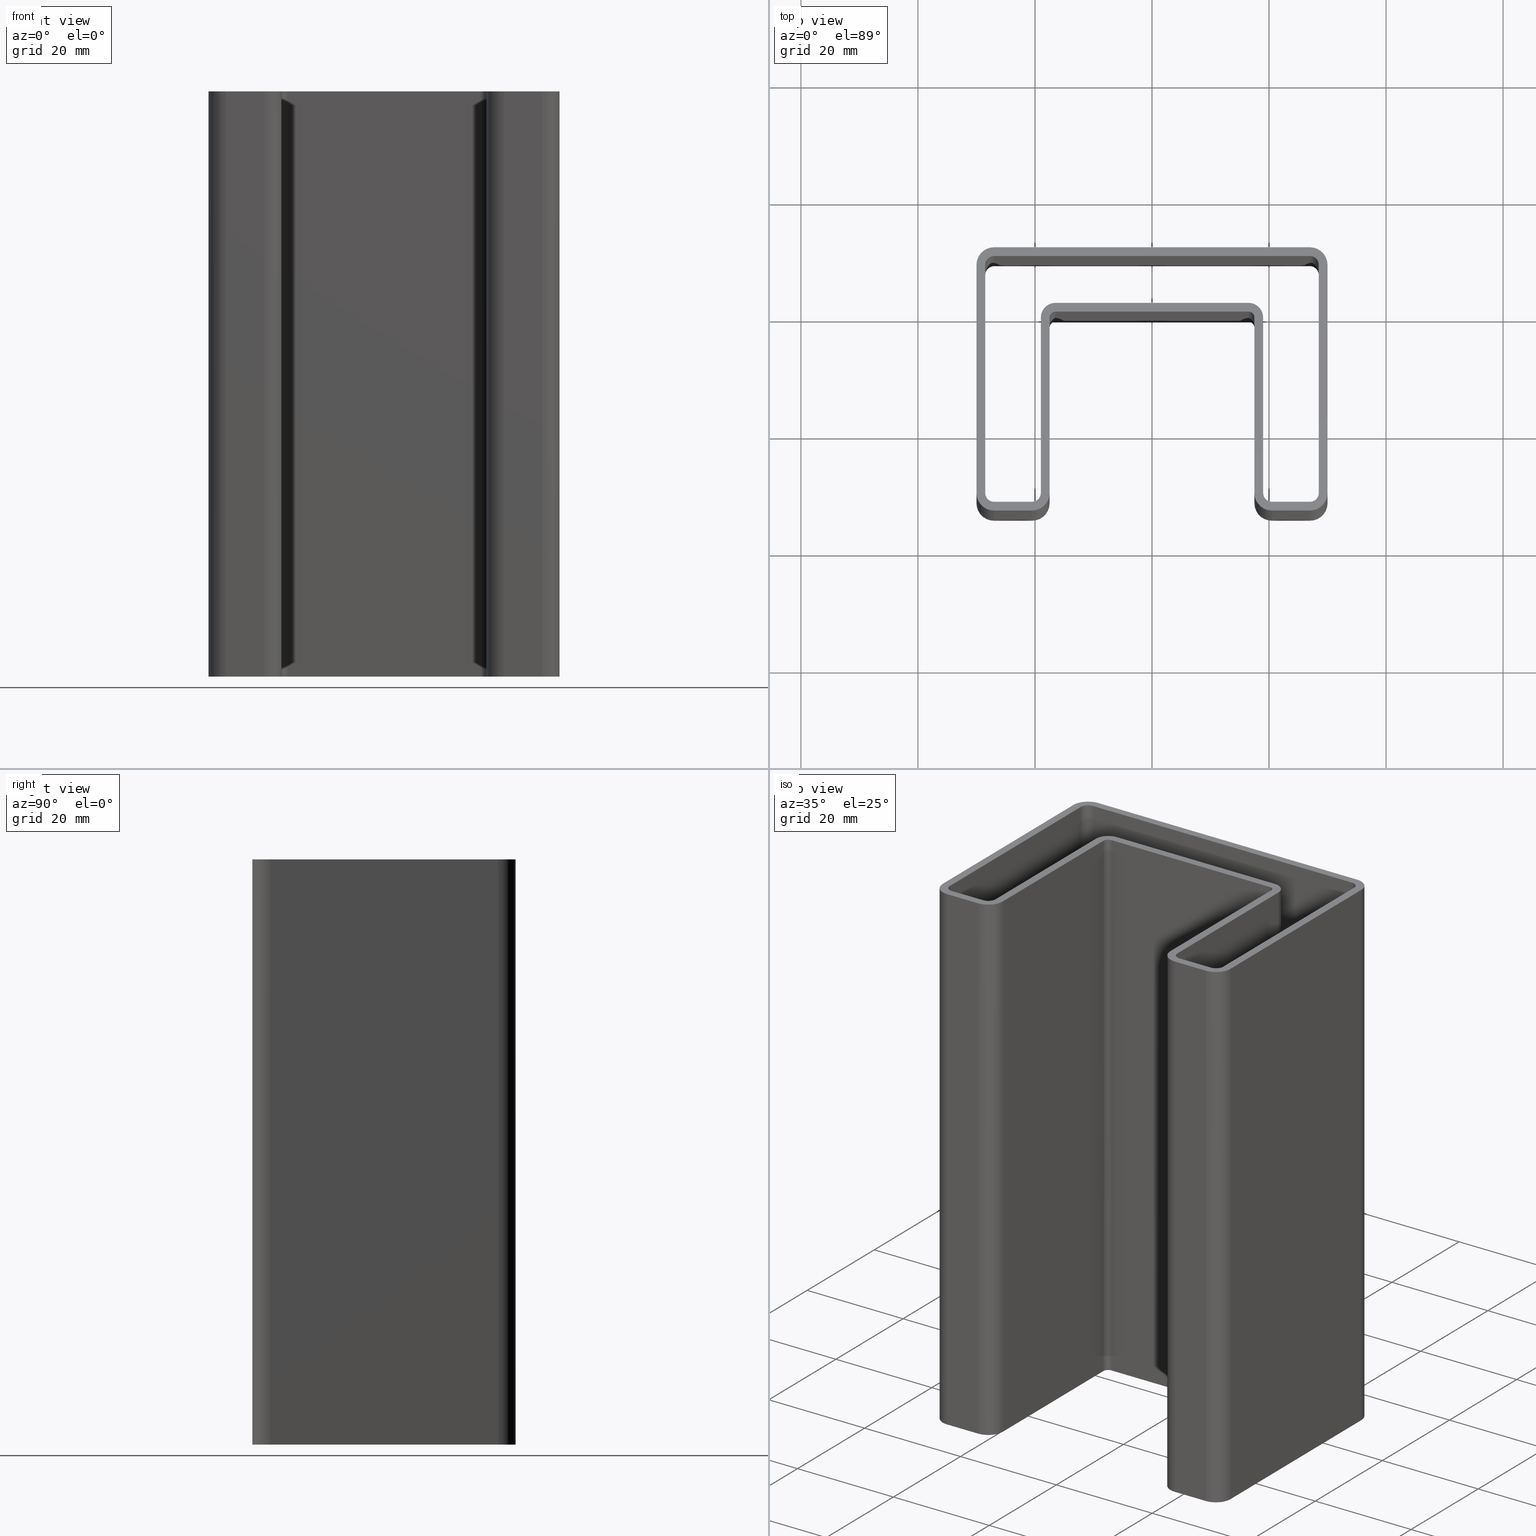
[diagram: canonical four-view strip — front | top / right | iso, engineering-drawing reading convention]
A machine part, canonical four-view strip (front | top / right | iso — engineering-drawing reading convention). The complete STEP part file that produces these views, byte-faithful:
ISO-10303-21;
HEADER;
/* Generated by software containing ST-Developer
 * from STEP Tools, Inc. (www.steptools.com) 
 */
/* OPTION: strings as raw bytes, not using required /X/ escapes */

FILE_DESCRIPTION(
/* description */ ('Unknown'),
/* implementation_level */ '2;1');

FILE_NAME(
/* name */ 'A000019',
/* time_stamp */ '2020-06-22T23:56:29+02:00',
/* author */ ('Unknown'),
/* organization */ ('Unknown'),
/* preprocessor_version */ 'ST-DEVELOPER v16.7',
/* originating_system */ 'DEX',
/* authorisation */ $);

FILE_SCHEMA (('CONFIG_CONTROL_DESIGN'));
ENDSEC;

DATA;
#10=PROPERTY_DEFINITION_REPRESENTATION(#14,#12);
#11=PROPERTY_DEFINITION_REPRESENTATION(#15,#13);
#12=REPRESENTATION('',(#16),#1145);
#13=REPRESENTATION('',(#17),#1145);
#14=PROPERTY_DEFINITION('pmi validation property','',#1150);
#15=PROPERTY_DEFINITION('pmi validation property','',#1150);
#16=VALUE_REPRESENTATION_ITEM('number of annotations',COUNT_MEASURE(0.));
#17=VALUE_REPRESENTATION_ITEM('number of views',COUNT_MEASURE(0.));
#18=SHAPE_REPRESENTATION_RELATIONSHIP('','',#683,#19);
#19=ADVANCED_BREP_SHAPE_REPRESENTATION('',(#681),#1145);
#20=CYLINDRICAL_SURFACE('',#706,1.);
#21=CYLINDRICAL_SURFACE('',#709,3.);
#22=CYLINDRICAL_SURFACE('',#727,3.);
#23=CYLINDRICAL_SURFACE('',#729,3.);
#24=CYLINDRICAL_SURFACE('',#730,3.);
#25=CYLINDRICAL_SURFACE('',#732,3.);
#26=CYLINDRICAL_SURFACE('',#734,3.);
#27=CYLINDRICAL_SURFACE('',#735,2.5);
#28=CYLINDRICAL_SURFACE('',#737,1.);
#29=CYLINDRICAL_SURFACE('',#739,1.5);
#30=CYLINDRICAL_SURFACE('',#741,1.5);
#31=CYLINDRICAL_SURFACE('',#743,1.5);
#32=CYLINDRICAL_SURFACE('',#745,1.5);
#33=CYLINDRICAL_SURFACE('',#747,1.5);
#34=CYLINDRICAL_SURFACE('',#749,1.5);
#35=CYLINDRICAL_SURFACE('',#750,2.5);
#36=CIRCLE('',#687,2.5);
#37=CIRCLE('',#688,2.5);
#38=CIRCLE('',#689,1.5);
#39=CIRCLE('',#690,1.5);
#40=CIRCLE('',#691,1.5);
#41=CIRCLE('',#692,1.5);
#42=CIRCLE('',#693,1.5);
#43=CIRCLE('',#694,1.5);
#44=CIRCLE('',#695,3.);
#45=CIRCLE('',#696,3.);
#46=CIRCLE('',#697,3.);
#47=CIRCLE('',#698,3.);
#48=CIRCLE('',#699,1.);
#49=CIRCLE('',#700,1.);
#50=CIRCLE('',#701,3.);
#51=CIRCLE('',#702,3.);
#52=CIRCLE('',#707,1.);
#53=CIRCLE('',#710,3.);
#54=CIRCLE('',#713,2.5);
#55=CIRCLE('',#714,1.5);
#56=CIRCLE('',#715,1.5);
#57=CIRCLE('',#716,1.5);
#58=CIRCLE('',#717,1.5);
#59=CIRCLE('',#718,1.5);
#60=CIRCLE('',#719,1.5);
#61=CIRCLE('',#720,2.5);
#62=CIRCLE('',#721,3.);
#63=CIRCLE('',#722,3.);
#64=CIRCLE('',#723,1.);
#65=CIRCLE('',#724,3.);
#66=CIRCLE('',#725,3.);
#67=CIRCLE('',#726,3.);
#68=ORIENTED_EDGE('',*,*,#260,.F.);
#69=ORIENTED_EDGE('',*,*,#261,.T.);
#70=ORIENTED_EDGE('',*,*,#262,.F.);
#71=ORIENTED_EDGE('',*,*,#263,.T.);
#72=ORIENTED_EDGE('',*,*,#264,.F.);
#73=ORIENTED_EDGE('',*,*,#265,.T.);
#74=ORIENTED_EDGE('',*,*,#266,.F.);
#75=ORIENTED_EDGE('',*,*,#267,.T.);
#76=ORIENTED_EDGE('',*,*,#268,.F.);
#77=ORIENTED_EDGE('',*,*,#269,.T.);
#78=ORIENTED_EDGE('',*,*,#270,.F.);
#79=ORIENTED_EDGE('',*,*,#271,.T.);
#80=ORIENTED_EDGE('',*,*,#272,.F.);
#81=ORIENTED_EDGE('',*,*,#273,.T.);
#82=ORIENTED_EDGE('',*,*,#274,.F.);
#83=ORIENTED_EDGE('',*,*,#275,.T.);
#84=ORIENTED_EDGE('',*,*,#276,.F.);
#85=ORIENTED_EDGE('',*,*,#277,.T.);
#86=ORIENTED_EDGE('',*,*,#278,.F.);
#87=ORIENTED_EDGE('',*,*,#279,.T.);
#88=ORIENTED_EDGE('',*,*,#280,.F.);
#89=ORIENTED_EDGE('',*,*,#281,.F.);
#90=ORIENTED_EDGE('',*,*,#282,.F.);
#91=ORIENTED_EDGE('',*,*,#283,.F.);
#92=ORIENTED_EDGE('',*,*,#284,.F.);
#93=ORIENTED_EDGE('',*,*,#285,.F.);
#94=ORIENTED_EDGE('',*,*,#286,.F.);
#95=ORIENTED_EDGE('',*,*,#287,.F.);
#96=ORIENTED_EDGE('',*,*,#288,.F.);
#97=ORIENTED_EDGE('',*,*,#289,.F.);
#98=ORIENTED_EDGE('',*,*,#290,.F.);
#99=ORIENTED_EDGE('',*,*,#291,.F.);
#100=ORIENTED_EDGE('',*,*,#292,.F.);
#101=ORIENTED_EDGE('',*,*,#293,.F.);
#102=ORIENTED_EDGE('',*,*,#294,.F.);
#103=ORIENTED_EDGE('',*,*,#261,.F.);
#104=ORIENTED_EDGE('',*,*,#295,.F.);
#105=ORIENTED_EDGE('',*,*,#279,.F.);
#106=ORIENTED_EDGE('',*,*,#296,.F.);
#107=ORIENTED_EDGE('',*,*,#297,.F.);
#108=ORIENTED_EDGE('',*,*,#298,.F.);
#109=ORIENTED_EDGE('',*,*,#291,.T.);
#110=ORIENTED_EDGE('',*,*,#299,.F.);
#111=ORIENTED_EDGE('',*,*,#300,.T.);
#112=ORIENTED_EDGE('',*,*,#301,.F.);
#113=ORIENTED_EDGE('',*,*,#285,.T.);
#114=ORIENTED_EDGE('',*,*,#302,.F.);
#115=ORIENTED_EDGE('',*,*,#303,.T.);
#116=ORIENTED_EDGE('',*,*,#288,.T.);
#117=ORIENTED_EDGE('',*,*,#304,.T.);
#118=ORIENTED_EDGE('',*,*,#305,.T.);
#119=ORIENTED_EDGE('',*,*,#306,.T.);
#120=ORIENTED_EDGE('',*,*,#307,.F.);
#121=ORIENTED_EDGE('',*,*,#289,.T.);
#122=ORIENTED_EDGE('',*,*,#306,.F.);
#123=ORIENTED_EDGE('',*,*,#308,.T.);
#124=ORIENTED_EDGE('',*,*,#309,.T.);
#125=ORIENTED_EDGE('',*,*,#310,.T.);
#126=ORIENTED_EDGE('',*,*,#280,.T.);
#127=ORIENTED_EDGE('',*,*,#260,.T.);
#128=ORIENTED_EDGE('',*,*,#310,.F.);
#129=ORIENTED_EDGE('',*,*,#311,.T.);
#130=ORIENTED_EDGE('',*,*,#312,.F.);
#131=ORIENTED_EDGE('',*,*,#281,.T.);
#132=ORIENTED_EDGE('',*,*,#313,.F.);
#133=ORIENTED_EDGE('',*,*,#297,.T.);
#134=ORIENTED_EDGE('',*,*,#314,.F.);
#135=ORIENTED_EDGE('',*,*,#315,.T.);
#136=ORIENTED_EDGE('',*,*,#316,.F.);
#137=ORIENTED_EDGE('',*,*,#317,.T.);
#138=ORIENTED_EDGE('',*,*,#318,.F.);
#139=ORIENTED_EDGE('',*,*,#319,.T.);
#140=ORIENTED_EDGE('',*,*,#320,.F.);
#141=ORIENTED_EDGE('',*,*,#321,.T.);
#142=ORIENTED_EDGE('',*,*,#322,.F.);
#143=ORIENTED_EDGE('',*,*,#323,.T.);
#144=ORIENTED_EDGE('',*,*,#324,.F.);
#145=ORIENTED_EDGE('',*,*,#325,.T.);
#146=ORIENTED_EDGE('',*,*,#326,.F.);
#147=ORIENTED_EDGE('',*,*,#327,.T.);
#148=ORIENTED_EDGE('',*,*,#309,.F.);
#149=ORIENTED_EDGE('',*,*,#263,.F.);
#150=ORIENTED_EDGE('',*,*,#328,.F.);
#151=ORIENTED_EDGE('',*,*,#329,.F.);
#152=ORIENTED_EDGE('',*,*,#330,.F.);
#153=ORIENTED_EDGE('',*,*,#300,.F.);
#154=ORIENTED_EDGE('',*,*,#331,.F.);
#155=ORIENTED_EDGE('',*,*,#308,.F.);
#156=ORIENTED_EDGE('',*,*,#305,.F.);
#157=ORIENTED_EDGE('',*,*,#332,.F.);
#158=ORIENTED_EDGE('',*,*,#333,.F.);
#159=ORIENTED_EDGE('',*,*,#303,.F.);
#160=ORIENTED_EDGE('',*,*,#334,.F.);
#161=ORIENTED_EDGE('',*,*,#335,.F.);
#162=ORIENTED_EDGE('',*,*,#336,.F.);
#163=ORIENTED_EDGE('',*,*,#311,.F.);
#164=ORIENTED_EDGE('',*,*,#328,.T.);
#165=ORIENTED_EDGE('',*,*,#262,.T.);
#166=ORIENTED_EDGE('',*,*,#294,.T.);
#167=ORIENTED_EDGE('',*,*,#337,.T.);
#168=ORIENTED_EDGE('',*,*,#337,.F.);
#169=ORIENTED_EDGE('',*,*,#293,.T.);
#170=ORIENTED_EDGE('',*,*,#338,.F.);
#171=ORIENTED_EDGE('',*,*,#329,.T.);
#172=ORIENTED_EDGE('',*,*,#330,.T.);
#173=ORIENTED_EDGE('',*,*,#338,.T.);
#174=ORIENTED_EDGE('',*,*,#292,.T.);
#175=ORIENTED_EDGE('',*,*,#298,.T.);
#176=ORIENTED_EDGE('',*,*,#333,.T.);
#177=ORIENTED_EDGE('',*,*,#339,.T.);
#178=ORIENTED_EDGE('',*,*,#286,.T.);
#179=ORIENTED_EDGE('',*,*,#301,.T.);
#180=ORIENTED_EDGE('',*,*,#339,.F.);
#181=ORIENTED_EDGE('',*,*,#332,.T.);
#182=ORIENTED_EDGE('',*,*,#304,.F.);
#183=ORIENTED_EDGE('',*,*,#287,.T.);
#184=ORIENTED_EDGE('',*,*,#334,.T.);
#185=ORIENTED_EDGE('',*,*,#302,.T.);
#186=ORIENTED_EDGE('',*,*,#284,.T.);
#187=ORIENTED_EDGE('',*,*,#340,.T.);
#188=ORIENTED_EDGE('',*,*,#340,.F.);
#189=ORIENTED_EDGE('',*,*,#283,.T.);
#190=ORIENTED_EDGE('',*,*,#341,.F.);
#191=ORIENTED_EDGE('',*,*,#335,.T.);
#192=ORIENTED_EDGE('',*,*,#336,.T.);
#193=ORIENTED_EDGE('',*,*,#341,.T.);
#194=ORIENTED_EDGE('',*,*,#282,.T.);
#195=ORIENTED_EDGE('',*,*,#312,.T.);
#196=ORIENTED_EDGE('',*,*,#313,.T.);
#197=ORIENTED_EDGE('',*,*,#342,.T.);
#198=ORIENTED_EDGE('',*,*,#264,.T.);
#199=ORIENTED_EDGE('',*,*,#295,.T.);
#200=ORIENTED_EDGE('',*,*,#342,.F.);
#201=ORIENTED_EDGE('',*,*,#327,.F.);
#202=ORIENTED_EDGE('',*,*,#343,.F.);
#203=ORIENTED_EDGE('',*,*,#265,.F.);
#204=ORIENTED_EDGE('',*,*,#290,.T.);
#205=ORIENTED_EDGE('',*,*,#307,.T.);
#206=ORIENTED_EDGE('',*,*,#331,.T.);
#207=ORIENTED_EDGE('',*,*,#299,.T.);
#208=ORIENTED_EDGE('',*,*,#344,.F.);
#209=ORIENTED_EDGE('',*,*,#321,.F.);
#210=ORIENTED_EDGE('',*,*,#345,.F.);
#211=ORIENTED_EDGE('',*,*,#271,.F.);
#212=ORIENTED_EDGE('',*,*,#272,.T.);
#213=ORIENTED_EDGE('',*,*,#345,.T.);
#214=ORIENTED_EDGE('',*,*,#320,.T.);
#215=ORIENTED_EDGE('',*,*,#346,.T.);
#216=ORIENTED_EDGE('',*,*,#347,.F.);
#217=ORIENTED_EDGE('',*,*,#273,.F.);
#218=ORIENTED_EDGE('',*,*,#346,.F.);
#219=ORIENTED_EDGE('',*,*,#319,.F.);
#220=ORIENTED_EDGE('',*,*,#274,.T.);
#221=ORIENTED_EDGE('',*,*,#347,.T.);
#222=ORIENTED_EDGE('',*,*,#318,.T.);
#223=ORIENTED_EDGE('',*,*,#348,.T.);
#224=ORIENTED_EDGE('',*,*,#349,.F.);
#225=ORIENTED_EDGE('',*,*,#323,.F.);
#226=ORIENTED_EDGE('',*,*,#350,.F.);
#227=ORIENTED_EDGE('',*,*,#269,.F.);
#228=ORIENTED_EDGE('',*,*,#270,.T.);
#229=ORIENTED_EDGE('',*,*,#350,.T.);
#230=ORIENTED_EDGE('',*,*,#322,.T.);
#231=ORIENTED_EDGE('',*,*,#344,.T.);
#232=ORIENTED_EDGE('',*,*,#351,.F.);
#233=ORIENTED_EDGE('',*,*,#325,.F.);
#234=ORIENTED_EDGE('',*,*,#352,.F.);
#235=ORIENTED_EDGE('',*,*,#267,.F.);
#236=ORIENTED_EDGE('',*,*,#268,.T.);
#237=ORIENTED_EDGE('',*,*,#352,.T.);
#238=ORIENTED_EDGE('',*,*,#324,.T.);
#239=ORIENTED_EDGE('',*,*,#349,.T.);
#240=ORIENTED_EDGE('',*,*,#353,.F.);
#241=ORIENTED_EDGE('',*,*,#275,.F.);
#242=ORIENTED_EDGE('',*,*,#348,.F.);
#243=ORIENTED_EDGE('',*,*,#317,.F.);
#244=ORIENTED_EDGE('',*,*,#276,.T.);
#245=ORIENTED_EDGE('',*,*,#353,.T.);
#246=ORIENTED_EDGE('',*,*,#316,.T.);
#247=ORIENTED_EDGE('',*,*,#354,.T.);
#248=ORIENTED_EDGE('',*,*,#355,.F.);
#249=ORIENTED_EDGE('',*,*,#277,.F.);
#250=ORIENTED_EDGE('',*,*,#354,.F.);
#251=ORIENTED_EDGE('',*,*,#315,.F.);
#252=ORIENTED_EDGE('',*,*,#278,.T.);
#253=ORIENTED_EDGE('',*,*,#355,.T.);
#254=ORIENTED_EDGE('',*,*,#314,.T.);
#255=ORIENTED_EDGE('',*,*,#296,.T.);
#256=ORIENTED_EDGE('',*,*,#326,.T.);
#257=ORIENTED_EDGE('',*,*,#351,.T.);
#258=ORIENTED_EDGE('',*,*,#266,.T.);
#259=ORIENTED_EDGE('',*,*,#343,.T.);
#260=EDGE_CURVE('',#356,#357,#420,.F.);
#261=EDGE_CURVE('',#356,#358,#421,.T.);
#262=EDGE_CURVE('',#359,#358,#422,.T.);
#263=EDGE_CURVE('',#359,#357,#423,.T.);
#264=EDGE_CURVE('',#360,#361,#36,.F.);
#265=EDGE_CURVE('',#360,#362,#424,.T.);
#266=EDGE_CURVE('',#363,#362,#37,.F.);
#267=EDGE_CURVE('',#363,#364,#425,.T.);
#268=EDGE_CURVE('',#365,#364,#38,.T.);
#269=EDGE_CURVE('',#365,#366,#426,.T.);
#270=EDGE_CURVE('',#367,#366,#39,.T.);
#271=EDGE_CURVE('',#367,#368,#427,.T.);
#272=EDGE_CURVE('',#369,#368,#40,.T.);
#273=EDGE_CURVE('',#369,#370,#428,.T.);
#274=EDGE_CURVE('',#371,#370,#41,.T.);
#275=EDGE_CURVE('',#371,#372,#429,.T.);
#276=EDGE_CURVE('',#373,#372,#42,.T.);
#277=EDGE_CURVE('',#373,#374,#430,.T.);
#278=EDGE_CURVE('',#375,#374,#43,.T.);
#279=EDGE_CURVE('',#375,#361,#431,.T.);
#280=EDGE_CURVE('',#376,#356,#44,.F.);
#281=EDGE_CURVE('',#377,#376,#432,.T.);
#282=EDGE_CURVE('',#378,#377,#45,.F.);
#283=EDGE_CURVE('',#379,#378,#433,.T.);
#284=EDGE_CURVE('',#380,#379,#46,.F.);
#285=EDGE_CURVE('',#381,#380,#434,.T.);
#286=EDGE_CURVE('',#382,#381,#47,.F.);
#287=EDGE_CURVE('',#383,#382,#435,.T.);
#288=EDGE_CURVE('',#384,#383,#48,.T.);
#289=EDGE_CURVE('',#385,#384,#436,.T.);
#290=EDGE_CURVE('',#386,#385,#49,.T.);
#291=EDGE_CURVE('',#387,#386,#437,.T.);
#292=EDGE_CURVE('',#388,#387,#50,.F.);
#293=EDGE_CURVE('',#389,#388,#438,.T.);
#294=EDGE_CURVE('',#358,#389,#51,.F.);
#295=EDGE_CURVE('',#361,#390,#439,.F.);
#296=EDGE_CURVE('',#391,#375,#440,.F.);
#297=EDGE_CURVE('',#390,#391,#441,.T.);
#298=EDGE_CURVE('',#387,#392,#442,.F.);
#299=EDGE_CURVE('',#393,#386,#443,.F.);
#300=EDGE_CURVE('',#393,#392,#444,.T.);
#301=EDGE_CURVE('',#381,#394,#445,.F.);
#302=EDGE_CURVE('',#395,#380,#446,.T.);
#303=EDGE_CURVE('',#395,#394,#447,.T.);
#304=EDGE_CURVE('',#383,#396,#448,.T.);
#305=EDGE_CURVE('',#396,#397,#52,.F.);
#306=EDGE_CURVE('',#397,#384,#449,.F.);
#307=EDGE_CURVE('',#385,#398,#450,.T.);
#308=EDGE_CURVE('',#397,#398,#451,.T.);
#309=EDGE_CURVE('',#357,#399,#53,.T.);
#310=EDGE_CURVE('',#399,#376,#452,.T.);
#311=EDGE_CURVE('',#399,#400,#453,.T.);
#312=EDGE_CURVE('',#377,#400,#454,.F.);
#313=EDGE_CURVE('',#390,#401,#54,.T.);
#314=EDGE_CURVE('',#402,#391,#55,.F.);
#315=EDGE_CURVE('',#402,#403,#455,.T.);
#316=EDGE_CURVE('',#404,#403,#56,.F.);
#317=EDGE_CURVE('',#404,#405,#456,.T.);
#318=EDGE_CURVE('',#406,#405,#57,.F.);
#319=EDGE_CURVE('',#406,#407,#457,.T.);
#320=EDGE_CURVE('',#408,#407,#58,.F.);
#321=EDGE_CURVE('',#408,#409,#458,.T.);
#322=EDGE_CURVE('',#410,#409,#59,.F.);
#323=EDGE_CURVE('',#410,#411,#459,.T.);
#324=EDGE_CURVE('',#412,#411,#60,.F.);
#325=EDGE_CURVE('',#412,#413,#460,.T.);
#326=EDGE_CURVE('',#414,#413,#61,.T.);
#327=EDGE_CURVE('',#414,#401,#461,.T.);
#328=EDGE_CURVE('',#415,#359,#62,.T.);
#329=EDGE_CURVE('',#416,#415,#462,.T.);
#330=EDGE_CURVE('',#392,#416,#63,.T.);
#331=EDGE_CURVE('',#398,#393,#64,.F.);
#332=EDGE_CURVE('',#417,#396,#463,.T.);
#333=EDGE_CURVE('',#394,#417,#65,.T.);
#334=EDGE_CURVE('',#418,#395,#66,.T.);
#335=EDGE_CURVE('',#419,#418,#464,.T.);
#336=EDGE_CURVE('',#400,#419,#67,.T.);
#337=EDGE_CURVE('',#389,#415,#465,.F.);
#338=EDGE_CURVE('',#416,#388,#466,.T.);
#339=EDGE_CURVE('',#417,#382,#467,.T.);
#340=EDGE_CURVE('',#379,#418,#468,.F.);
#341=EDGE_CURVE('',#419,#378,#469,.T.);
#342=EDGE_CURVE('',#401,#360,#470,.T.);
#343=EDGE_CURVE('',#362,#414,#471,.F.);
#344=EDGE_CURVE('',#409,#367,#472,.F.);
#345=EDGE_CURVE('',#368,#408,#473,.T.);
#346=EDGE_CURVE('',#407,#369,#474,.F.);
#347=EDGE_CURVE('',#370,#406,#475,.T.);
#348=EDGE_CURVE('',#405,#371,#476,.F.);
#349=EDGE_CURVE('',#411,#365,#477,.F.);
#350=EDGE_CURVE('',#366,#410,#478,.T.);
#351=EDGE_CURVE('',#413,#363,#479,.T.);
#352=EDGE_CURVE('',#364,#412,#480,.T.);
#353=EDGE_CURVE('',#372,#404,#481,.T.);
#354=EDGE_CURVE('',#403,#373,#482,.F.);
#355=EDGE_CURVE('',#374,#402,#483,.T.);
#356=VERTEX_POINT('',#952);
#357=VERTEX_POINT('',#953);
#358=VERTEX_POINT('',#955);
#359=VERTEX_POINT('',#957);
#360=VERTEX_POINT('',#961);
#361=VERTEX_POINT('',#962);
#362=VERTEX_POINT('',#964);
#363=VERTEX_POINT('',#966);
#364=VERTEX_POINT('',#968);
#365=VERTEX_POINT('',#970);
#366=VERTEX_POINT('',#972);
#367=VERTEX_POINT('',#974);
#368=VERTEX_POINT('',#976);
#369=VERTEX_POINT('',#978);
#370=VERTEX_POINT('',#980);
#371=VERTEX_POINT('',#982);
#372=VERTEX_POINT('',#984);
#373=VERTEX_POINT('',#986);
#374=VERTEX_POINT('',#988);
#375=VERTEX_POINT('',#990);
#376=VERTEX_POINT('',#993);
#377=VERTEX_POINT('',#995);
#378=VERTEX_POINT('',#997);
#379=VERTEX_POINT('',#999);
#380=VERTEX_POINT('',#1001);
#381=VERTEX_POINT('',#1003);
#382=VERTEX_POINT('',#1005);
#383=VERTEX_POINT('',#1007);
#384=VERTEX_POINT('',#1009);
#385=VERTEX_POINT('',#1011);
#386=VERTEX_POINT('',#1013);
#387=VERTEX_POINT('',#1015);
#388=VERTEX_POINT('',#1017);
#389=VERTEX_POINT('',#1019);
#390=VERTEX_POINT('',#1023);
#391=VERTEX_POINT('',#1025);
#392=VERTEX_POINT('',#1029);
#393=VERTEX_POINT('',#1031);
#394=VERTEX_POINT('',#1035);
#395=VERTEX_POINT('',#1037);
#396=VERTEX_POINT('',#1041);
#397=VERTEX_POINT('',#1043);
#398=VERTEX_POINT('',#1047);
#399=VERTEX_POINT('',#1051);
#400=VERTEX_POINT('',#1055);
#401=VERTEX_POINT('',#1059);
#402=VERTEX_POINT('',#1061);
#403=VERTEX_POINT('',#1063);
#404=VERTEX_POINT('',#1065);
#405=VERTEX_POINT('',#1067);
#406=VERTEX_POINT('',#1069);
#407=VERTEX_POINT('',#1071);
#408=VERTEX_POINT('',#1073);
#409=VERTEX_POINT('',#1075);
#410=VERTEX_POINT('',#1077);
#411=VERTEX_POINT('',#1079);
#412=VERTEX_POINT('',#1081);
#413=VERTEX_POINT('',#1083);
#414=VERTEX_POINT('',#1085);
#415=VERTEX_POINT('',#1088);
#416=VERTEX_POINT('',#1090);
#417=VERTEX_POINT('',#1094);
#418=VERTEX_POINT('',#1097);
#419=VERTEX_POINT('',#1099);
#420=LINE('',#951,#484);
#421=LINE('',#954,#485);
#422=LINE('',#956,#486);
#423=LINE('',#958,#487);
#424=LINE('',#963,#488);
#425=LINE('',#967,#489);
#426=LINE('',#971,#490);
#427=LINE('',#975,#491);
#428=LINE('',#979,#492);
#429=LINE('',#983,#493);
#430=LINE('',#987,#494);
#431=LINE('',#991,#495);
#432=LINE('',#994,#496);
#433=LINE('',#998,#497);
#434=LINE('',#1002,#498);
#435=LINE('',#1006,#499);
#436=LINE('',#1010,#500);
#437=LINE('',#1014,#501);
#438=LINE('',#1018,#502);
#439=LINE('',#1022,#503);
#440=LINE('',#1024,#504);
#441=LINE('',#1026,#505);
#442=LINE('',#1028,#506);
#443=LINE('',#1030,#507);
#444=LINE('',#1032,#508);
#445=LINE('',#1034,#509);
#446=LINE('',#1036,#510);
#447=LINE('',#1038,#511);
#448=LINE('',#1040,#512);
#449=LINE('',#1044,#513);
#450=LINE('',#1046,#514);
#451=LINE('',#1048,#515);
#452=LINE('',#1052,#516);
#453=LINE('',#1054,#517);
#454=LINE('',#1056,#518);
#455=LINE('',#1062,#519);
#456=LINE('',#1066,#520);
#457=LINE('',#1070,#521);
#458=LINE('',#1074,#522);
#459=LINE('',#1078,#523);
#460=LINE('',#1082,#524);
#461=LINE('',#1086,#525);
#462=LINE('',#1089,#526);
#463=LINE('',#1093,#527);
#464=LINE('',#1098,#528);
#465=LINE('',#1102,#529);
#466=LINE('',#1104,#530);
#467=LINE('',#1107,#531);
#468=LINE('',#1110,#532);
#469=LINE('',#1112,#533);
#470=LINE('',#1115,#534);
#471=LINE('',#1117,#535);
#472=LINE('',#1120,#536);
#473=LINE('',#1121,#537);
#474=LINE('',#1123,#538);
#475=LINE('',#1125,#539);
#476=LINE('',#1127,#540);
#477=LINE('',#1129,#541);
#478=LINE('',#1130,#542);
#479=LINE('',#1133,#543);
#480=LINE('',#1134,#544);
#481=LINE('',#1137,#545);
#482=LINE('',#1139,#546);
#483=LINE('',#1141,#547);
#484=VECTOR('',#755,1000.);
#485=VECTOR('',#756,1000.);
#486=VECTOR('',#757,1000.);
#487=VECTOR('',#758,1000.);
#488=VECTOR('',#763,1000.);
#489=VECTOR('',#766,1000.);
#490=VECTOR('',#769,1000.);
#491=VECTOR('',#772,1000.);
#492=VECTOR('',#775,1000.);
#493=VECTOR('',#778,1000.);
#494=VECTOR('',#781,1000.);
#495=VECTOR('',#784,1000.);
#496=VECTOR('',#787,1000.);
#497=VECTOR('',#790,1000.);
#498=VECTOR('',#793,1000.);
#499=VECTOR('',#796,1000.);
#500=VECTOR('',#799,1000.);
#501=VECTOR('',#802,1000.);
#502=VECTOR('',#805,1000.);
#503=VECTOR('',#810,1000.);
#504=VECTOR('',#811,1000.);
#505=VECTOR('',#812,1000.);
#506=VECTOR('',#815,1000.);
#507=VECTOR('',#816,1000.);
#508=VECTOR('',#817,1000.);
#509=VECTOR('',#820,1000.);
#510=VECTOR('',#821,1000.);
#511=VECTOR('',#822,1000.);
#512=VECTOR('',#825,1000.);
#513=VECTOR('',#828,1000.);
#514=VECTOR('',#831,1000.);
#515=VECTOR('',#832,1000.);
#516=VECTOR('',#837,1000.);
#517=VECTOR('',#840,1000.);
#518=VECTOR('',#841,1000.);
#519=VECTOR('',#848,1000.);
#520=VECTOR('',#851,1000.);
#521=VECTOR('',#854,1000.);
#522=VECTOR('',#857,1000.);
#523=VECTOR('',#860,1000.);
#524=VECTOR('',#863,1000.);
#525=VECTOR('',#866,1000.);
#526=VECTOR('',#869,1000.);
#527=VECTOR('',#874,1000.);
#528=VECTOR('',#879,1000.);
#529=VECTOR('',#884,1000.);
#530=VECTOR('',#887,1000.);
#531=VECTOR('',#892,1000.);
#532=VECTOR('',#897,1000.);
#533=VECTOR('',#900,1000.);
#534=VECTOR('',#905,1000.);
#535=VECTOR('',#908,1000.);
#536=VECTOR('',#913,1000.);
#537=VECTOR('',#914,1000.);
#538=VECTOR('',#917,1000.);
#539=VECTOR('',#920,1000.);
#540=VECTOR('',#923,1000.);
#541=VECTOR('',#926,1000.);
#542=VECTOR('',#927,1000.);
#543=VECTOR('',#932,1000.);
#544=VECTOR('',#933,1000.);
#545=VECTOR('',#938,1000.);
#546=VECTOR('',#941,1000.);
#547=VECTOR('',#944,1000.);
#548=EDGE_LOOP('',(#68,#69,#70,#71));
#549=EDGE_LOOP('',(#72,#73,#74,#75,#76,#77,#78,#79,#80,#81,#82,#83,#84,
#85,#86,#87));
#550=EDGE_LOOP('',(#88,#89,#90,#91,#92,#93,#94,#95,#96,#97,#98,#99,#100,
#101,#102,#103));
#551=EDGE_LOOP('',(#104,#105,#106,#107));
#552=EDGE_LOOP('',(#108,#109,#110,#111));
#553=EDGE_LOOP('',(#112,#113,#114,#115));
#554=EDGE_LOOP('',(#116,#117,#118,#119));
#555=EDGE_LOOP('',(#120,#121,#122,#123));
#556=EDGE_LOOP('',(#124,#125,#126,#127));
#557=EDGE_LOOP('',(#128,#129,#130,#131));
#558=EDGE_LOOP('',(#132,#133,#134,#135,#136,#137,#138,#139,#140,#141,#142,
#143,#144,#145,#146,#147));
#559=EDGE_LOOP('',(#148,#149,#150,#151,#152,#153,#154,#155,#156,#157,#158,
#159,#160,#161,#162,#163));
#560=EDGE_LOOP('',(#164,#165,#166,#167));
#561=EDGE_LOOP('',(#168,#169,#170,#171));
#562=EDGE_LOOP('',(#172,#173,#174,#175));
#563=EDGE_LOOP('',(#176,#177,#178,#179));
#564=EDGE_LOOP('',(#180,#181,#182,#183));
#565=EDGE_LOOP('',(#184,#185,#186,#187));
#566=EDGE_LOOP('',(#188,#189,#190,#191));
#567=EDGE_LOOP('',(#192,#193,#194,#195));
#568=EDGE_LOOP('',(#196,#197,#198,#199));
#569=EDGE_LOOP('',(#200,#201,#202,#203));
#570=EDGE_LOOP('',(#204,#205,#206,#207));
#571=EDGE_LOOP('',(#208,#209,#210,#211));
#572=EDGE_LOOP('',(#212,#213,#214,#215));
#573=EDGE_LOOP('',(#216,#217,#218,#219));
#574=EDGE_LOOP('',(#220,#221,#222,#223));
#575=EDGE_LOOP('',(#224,#225,#226,#227));
#576=EDGE_LOOP('',(#228,#229,#230,#231));
#577=EDGE_LOOP('',(#232,#233,#234,#235));
#578=EDGE_LOOP('',(#236,#237,#238,#239));
#579=EDGE_LOOP('',(#240,#241,#242,#243));
#580=EDGE_LOOP('',(#244,#245,#246,#247));
#581=EDGE_LOOP('',(#248,#249,#250,#251));
#582=EDGE_LOOP('',(#252,#253,#254,#255));
#583=EDGE_LOOP('',(#256,#257,#258,#259));
#584=FACE_BOUND('',#548,.T.);
#585=FACE_BOUND('',#549,.T.);
#586=FACE_BOUND('',#550,.T.);
#587=FACE_BOUND('',#551,.T.);
#588=FACE_BOUND('',#552,.T.);
#589=FACE_BOUND('',#553,.T.);
#590=FACE_BOUND('',#554,.T.);
#591=FACE_BOUND('',#555,.T.);
#592=FACE_BOUND('',#556,.T.);
#593=FACE_BOUND('',#557,.T.);
#594=FACE_BOUND('',#558,.T.);
#595=FACE_BOUND('',#559,.T.);
#596=FACE_BOUND('',#560,.T.);
#597=FACE_BOUND('',#561,.T.);
#598=FACE_BOUND('',#562,.T.);
#599=FACE_BOUND('',#563,.T.);
#600=FACE_BOUND('',#564,.T.);
#601=FACE_BOUND('',#565,.T.);
#602=FACE_BOUND('',#566,.T.);
#603=FACE_BOUND('',#567,.T.);
#604=FACE_BOUND('',#568,.T.);
#605=FACE_BOUND('',#569,.T.);
#606=FACE_BOUND('',#570,.T.);
#607=FACE_BOUND('',#571,.T.);
#608=FACE_BOUND('',#572,.T.);
#609=FACE_BOUND('',#573,.T.);
#610=FACE_BOUND('',#574,.T.);
#611=FACE_BOUND('',#575,.T.);
#612=FACE_BOUND('',#576,.T.);
#613=FACE_BOUND('',#577,.T.);
#614=FACE_BOUND('',#578,.T.);
#615=FACE_BOUND('',#579,.T.);
#616=FACE_BOUND('',#580,.T.);
#617=FACE_BOUND('',#581,.T.);
#618=FACE_BOUND('',#582,.T.);
#619=FACE_BOUND('',#583,.T.);
#620=PLANE('',#685);
#621=PLANE('',#686);
#622=PLANE('',#703);
#623=PLANE('',#704);
#624=PLANE('',#705);
#625=PLANE('',#708);
#626=PLANE('',#711);
#627=PLANE('',#712);
#628=PLANE('',#728);
#629=PLANE('',#731);
#630=PLANE('',#733);
#631=PLANE('',#736);
#632=PLANE('',#738);
#633=PLANE('',#740);
#634=PLANE('',#742);
#635=PLANE('',#744);
#636=PLANE('',#746);
#637=PLANE('',#748);
#638=ADVANCED_FACE('',(#584),#620,.T.);
#639=ADVANCED_FACE('',(#585,#586),#621,.T.);
#640=ADVANCED_FACE('',(#587),#622,.F.);
#641=ADVANCED_FACE('',(#588),#623,.T.);
#642=ADVANCED_FACE('',(#589),#624,.T.);
#643=ADVANCED_FACE('',(#590),#20,.F.);
#644=ADVANCED_FACE('',(#591),#625,.T.);
#645=ADVANCED_FACE('',(#592),#21,.T.);
#646=ADVANCED_FACE('',(#593),#626,.T.);
#647=ADVANCED_FACE('',(#594,#595),#627,.F.);
#648=ADVANCED_FACE('',(#596),#22,.T.);
#649=ADVANCED_FACE('',(#597),#628,.T.);
#650=ADVANCED_FACE('',(#598),#23,.T.);
#651=ADVANCED_FACE('',(#599),#24,.T.);
#652=ADVANCED_FACE('',(#600),#629,.T.);
#653=ADVANCED_FACE('',(#601),#25,.T.);
#654=ADVANCED_FACE('',(#602),#630,.T.);
#655=ADVANCED_FACE('',(#603),#26,.T.);
#656=ADVANCED_FACE('',(#604),#27,.T.);
#657=ADVANCED_FACE('',(#605),#631,.F.);
#658=ADVANCED_FACE('',(#606),#28,.F.);
#659=ADVANCED_FACE('',(#607),#632,.F.);
#660=ADVANCED_FACE('',(#608),#29,.F.);
#661=ADVANCED_FACE('',(#609),#633,.F.);
#662=ADVANCED_FACE('',(#610),#30,.F.);
#663=ADVANCED_FACE('',(#611),#634,.F.);
#664=ADVANCED_FACE('',(#612),#31,.F.);
#665=ADVANCED_FACE('',(#613),#635,.F.);
#666=ADVANCED_FACE('',(#614),#32,.F.);
#667=ADVANCED_FACE('',(#615),#636,.F.);
#668=ADVANCED_FACE('',(#616),#33,.F.);
#669=ADVANCED_FACE('',(#617),#637,.F.);
#670=ADVANCED_FACE('',(#618),#34,.F.);
#671=ADVANCED_FACE('',(#619),#35,.T.);
#672=CLOSED_SHELL('',(#638,#639,#640,#641,#642,#643,#644,#645,#646,#647,
#648,#649,#650,#651,#652,#653,#654,#655,#656,#657,#658,#659,#660,#661,#662,
#663,#664,#665,#666,#667,#668,#669,#670,#671));
#673=STYLED_ITEM('',(#674),#681);
#674=PRESENTATION_STYLE_ASSIGNMENT((#675));
#675=SURFACE_STYLE_USAGE(.BOTH.,#676);
#676=SURFACE_SIDE_STYLE('',(#677));
#677=SURFACE_STYLE_FILL_AREA(#678);
#678=FILL_AREA_STYLE('',(#679));
#679=FILL_AREA_STYLE_COLOUR('',#680);
#680=COLOUR_RGB('',0.331739127635956,0.340869575738907,0.349999994039536);
#681=MANIFOLD_SOLID_BREP('Nutrohr 60x45x1,5',#672);
#682=SHAPE_DEFINITION_REPRESENTATION(#1150,#683);
#683=SHAPE_REPRESENTATION('A000019',(#684),#1145);
#684=AXIS2_PLACEMENT_3D('',#949,#751,#752);
#685=AXIS2_PLACEMENT_3D('',#950,#753,#754);
#686=AXIS2_PLACEMENT_3D('',#959,#759,#760);
#687=AXIS2_PLACEMENT_3D('',#960,#761,#762);
#688=AXIS2_PLACEMENT_3D('',#965,#764,#765);
#689=AXIS2_PLACEMENT_3D('',#969,#767,#768);
#690=AXIS2_PLACEMENT_3D('',#973,#770,#771);
#691=AXIS2_PLACEMENT_3D('',#977,#773,#774);
#692=AXIS2_PLACEMENT_3D('',#981,#776,#777);
#693=AXIS2_PLACEMENT_3D('',#985,#779,#780);
#694=AXIS2_PLACEMENT_3D('',#989,#782,#783);
#695=AXIS2_PLACEMENT_3D('',#992,#785,#786);
#696=AXIS2_PLACEMENT_3D('',#996,#788,#789);
#697=AXIS2_PLACEMENT_3D('',#1000,#791,#792);
#698=AXIS2_PLACEMENT_3D('',#1004,#794,#795);
#699=AXIS2_PLACEMENT_3D('',#1008,#797,#798);
#700=AXIS2_PLACEMENT_3D('',#1012,#800,#801);
#701=AXIS2_PLACEMENT_3D('',#1016,#803,#804);
#702=AXIS2_PLACEMENT_3D('',#1020,#806,#807);
#703=AXIS2_PLACEMENT_3D('',#1021,#808,#809);
#704=AXIS2_PLACEMENT_3D('',#1027,#813,#814);
#705=AXIS2_PLACEMENT_3D('',#1033,#818,#819);
#706=AXIS2_PLACEMENT_3D('',#1039,#823,#824);
#707=AXIS2_PLACEMENT_3D('',#1042,#826,#827);
#708=AXIS2_PLACEMENT_3D('',#1045,#829,#830);
#709=AXIS2_PLACEMENT_3D('',#1049,#833,#834);
#710=AXIS2_PLACEMENT_3D('',#1050,#835,#836);
#711=AXIS2_PLACEMENT_3D('',#1053,#838,#839);
#712=AXIS2_PLACEMENT_3D('',#1057,#842,#843);
#713=AXIS2_PLACEMENT_3D('',#1058,#844,#845);
#714=AXIS2_PLACEMENT_3D('',#1060,#846,#847);
#715=AXIS2_PLACEMENT_3D('',#1064,#849,#850);
#716=AXIS2_PLACEMENT_3D('',#1068,#852,#853);
#717=AXIS2_PLACEMENT_3D('',#1072,#855,#856);
#718=AXIS2_PLACEMENT_3D('',#1076,#858,#859);
#719=AXIS2_PLACEMENT_3D('',#1080,#861,#862);
#720=AXIS2_PLACEMENT_3D('',#1084,#864,#865);
#721=AXIS2_PLACEMENT_3D('',#1087,#867,#868);
#722=AXIS2_PLACEMENT_3D('',#1091,#870,#871);
#723=AXIS2_PLACEMENT_3D('',#1092,#872,#873);
#724=AXIS2_PLACEMENT_3D('',#1095,#875,#876);
#725=AXIS2_PLACEMENT_3D('',#1096,#877,#878);
#726=AXIS2_PLACEMENT_3D('',#1100,#880,#881);
#727=AXIS2_PLACEMENT_3D('',#1101,#882,#883);
#728=AXIS2_PLACEMENT_3D('',#1103,#885,#886);
#729=AXIS2_PLACEMENT_3D('',#1105,#888,#889);
#730=AXIS2_PLACEMENT_3D('',#1106,#890,#891);
#731=AXIS2_PLACEMENT_3D('',#1108,#893,#894);
#732=AXIS2_PLACEMENT_3D('',#1109,#895,#896);
#733=AXIS2_PLACEMENT_3D('',#1111,#898,#899);
#734=AXIS2_PLACEMENT_3D('',#1113,#901,#902);
#735=AXIS2_PLACEMENT_3D('',#1114,#903,#904);
#736=AXIS2_PLACEMENT_3D('',#1116,#906,#907);
#737=AXIS2_PLACEMENT_3D('',#1118,#909,#910);
#738=AXIS2_PLACEMENT_3D('',#1119,#911,#912);
#739=AXIS2_PLACEMENT_3D('',#1122,#915,#916);
#740=AXIS2_PLACEMENT_3D('',#1124,#918,#919);
#741=AXIS2_PLACEMENT_3D('',#1126,#921,#922);
#742=AXIS2_PLACEMENT_3D('',#1128,#924,#925);
#743=AXIS2_PLACEMENT_3D('',#1131,#928,#929);
#744=AXIS2_PLACEMENT_3D('',#1132,#930,#931);
#745=AXIS2_PLACEMENT_3D('',#1135,#934,#935);
#746=AXIS2_PLACEMENT_3D('',#1136,#936,#937);
#747=AXIS2_PLACEMENT_3D('',#1138,#939,#940);
#748=AXIS2_PLACEMENT_3D('',#1140,#942,#943);
#749=AXIS2_PLACEMENT_3D('',#1142,#945,#946);
#750=AXIS2_PLACEMENT_3D('',#1143,#947,#948);
#751=DIRECTION('',(0.,0.,1.));
#752=DIRECTION('',(1.,0.,0.));
#753=DIRECTION('',(1.,0.,0.));
#754=DIRECTION('',(0.,1.,0.));
#755=DIRECTION('',(0.,0.,1.));
#756=DIRECTION('',(0.,-1.,0.));
#757=DIRECTION('',(0.,0.,1.));
#758=DIRECTION('',(0.,1.,0.));
#759=DIRECTION('',(0.,0.,1.));
#760=DIRECTION('',(1.,0.,0.));
#761=DIRECTION('',(0.,0.,1.));
#762=DIRECTION('',(1.,0.,0.));
#763=DIRECTION('',(-1.,0.,0.));
#764=DIRECTION('',(0.,0.,1.));
#765=DIRECTION('',(1.,0.,0.));
#766=DIRECTION('',(0.,-1.,0.));
#767=DIRECTION('',(0.,0.,1.));
#768=DIRECTION('',(1.,0.,0.));
#769=DIRECTION('',(-1.,0.,0.));
#770=DIRECTION('',(0.,0.,1.));
#771=DIRECTION('',(1.,0.,0.));
#772=DIRECTION('',(0.,1.,0.));
#773=DIRECTION('',(0.,0.,1.));
#774=DIRECTION('',(1.,0.,0.));
#775=DIRECTION('',(1.,0.,0.));
#776=DIRECTION('',(0.,0.,1.));
#777=DIRECTION('',(1.,0.,0.));
#778=DIRECTION('',(0.,-1.,0.));
#779=DIRECTION('',(0.,0.,1.));
#780=DIRECTION('',(1.,0.,0.));
#781=DIRECTION('',(-1.,0.,0.));
#782=DIRECTION('',(0.,0.,1.));
#783=DIRECTION('',(1.,0.,0.));
#784=DIRECTION('',(0.,1.,0.));
#785=DIRECTION('',(0.,0.,1.));
#786=DIRECTION('',(1.,0.,0.));
#787=DIRECTION('',(1.,0.,0.));
#788=DIRECTION('',(0.,0.,1.));
#789=DIRECTION('',(1.,0.,0.));
#790=DIRECTION('',(0.,1.,0.));
#791=DIRECTION('',(0.,0.,1.));
#792=DIRECTION('',(1.,0.,0.));
#793=DIRECTION('',(-1.,0.,0.));
#794=DIRECTION('',(0.,0.,1.));
#795=DIRECTION('',(1.,0.,0.));
#796=DIRECTION('',(0.,-1.,0.));
#797=DIRECTION('',(0.,0.,1.));
#798=DIRECTION('',(1.,0.,0.));
#799=DIRECTION('',(-1.,0.,0.));
#800=DIRECTION('',(0.,0.,1.));
#801=DIRECTION('',(1.,0.,0.));
#802=DIRECTION('',(0.,1.,0.));
#803=DIRECTION('',(0.,0.,1.));
#804=DIRECTION('',(1.,0.,0.));
#805=DIRECTION('',(-1.,0.,0.));
#806=DIRECTION('',(0.,0.,1.));
#807=DIRECTION('',(1.,0.,0.));
#808=DIRECTION('',(-1.,-2.61228946970625E-16,0.));
#809=DIRECTION('',(-2.61228946970625E-16,1.,0.));
#810=DIRECTION('',(0.,0.,1.));
#811=DIRECTION('',(0.,0.,-1.));
#812=DIRECTION('',(0.,-1.,0.));
#813=DIRECTION('',(-1.,1.95921710227969E-16,0.));
#814=DIRECTION('',(0.,0.,1.));
#815=DIRECTION('',(0.,0.,1.));
#816=DIRECTION('',(0.,0.,-1.));
#817=DIRECTION('',(0.,-1.,0.));
#818=DIRECTION('',(4.23851588632302E-16,-1.,0.));
#819=DIRECTION('',(0.,0.,-1.));
#820=DIRECTION('',(-2.72962250941526E-31,-1.15695483698215E-46,1.));
#821=DIRECTION('',(0.,0.,1.));
#822=DIRECTION('',(1.,0.,0.));
#823=DIRECTION('',(2.72962250941526E-31,0.,-1.));
#824=DIRECTION('',(-1.,0.,-2.72962250941526E-31));
#825=DIRECTION('',(2.72962250941526E-31,0.,-1.));
#826=DIRECTION('',(0.,0.,1.));
#827=DIRECTION('',(1.,0.,0.));
#828=DIRECTION('',(2.72962250941526E-31,0.,-1.));
#829=DIRECTION('',(0.,-1.,0.));
#830=DIRECTION('',(0.,0.,-1.));
#831=DIRECTION('',(0.,0.,-1.));
#832=DIRECTION('',(1.,0.,0.));
#833=DIRECTION('',(0.,0.,-1.));
#834=DIRECTION('',(-1.,0.,0.));
#835=DIRECTION('',(0.,0.,1.));
#836=DIRECTION('',(1.,0.,0.));
#837=DIRECTION('',(0.,0.,1.));
#838=DIRECTION('',(0.,1.,0.));
#839=DIRECTION('',(1.,0.,0.));
#840=DIRECTION('',(-1.,0.,0.));
#841=DIRECTION('',(0.,0.,1.));
#842=DIRECTION('',(0.,0.,1.));
#843=DIRECTION('',(1.,0.,0.));
#844=DIRECTION('',(0.,0.,1.));
#845=DIRECTION('',(1.,0.,0.));
#846=DIRECTION('',(0.,0.,1.));
#847=DIRECTION('',(1.,0.,0.));
#848=DIRECTION('',(1.,0.,0.));
#849=DIRECTION('',(0.,0.,1.));
#850=DIRECTION('',(1.,0.,0.));
#851=DIRECTION('',(0.,1.,0.));
#852=DIRECTION('',(0.,0.,1.));
#853=DIRECTION('',(1.,0.,0.));
#854=DIRECTION('',(-1.,0.,0.));
#855=DIRECTION('',(0.,0.,1.));
#856=DIRECTION('',(1.,0.,0.));
#857=DIRECTION('',(0.,-1.,0.));
#858=DIRECTION('',(0.,0.,1.));
#859=DIRECTION('',(1.,0.,0.));
#860=DIRECTION('',(1.,0.,0.));
#861=DIRECTION('',(0.,0.,1.));
#862=DIRECTION('',(1.,0.,0.));
#863=DIRECTION('',(0.,1.,0.));
#864=DIRECTION('',(0.,0.,1.));
#865=DIRECTION('',(1.,0.,0.));
#866=DIRECTION('',(1.,0.,0.));
#867=DIRECTION('',(0.,0.,1.));
#868=DIRECTION('',(1.,0.,0.));
#869=DIRECTION('',(1.,0.,0.));
#870=DIRECTION('',(0.,0.,1.));
#871=DIRECTION('',(1.,0.,0.));
#872=DIRECTION('',(0.,0.,1.));
#873=DIRECTION('',(1.,0.,0.));
#874=DIRECTION('',(0.,1.,0.));
#875=DIRECTION('',(0.,0.,1.));
#876=DIRECTION('',(1.,0.,0.));
#877=DIRECTION('',(0.,0.,1.));
#878=DIRECTION('',(1.,0.,0.));
#879=DIRECTION('',(0.,-1.,0.));
#880=DIRECTION('',(0.,0.,1.));
#881=DIRECTION('',(1.,0.,0.));
#882=DIRECTION('',(0.,0.,-1.));
#883=DIRECTION('',(-1.,0.,0.));
#884=DIRECTION('',(0.,0.,1.));
#885=DIRECTION('',(-4.23851588632302E-16,-1.,0.));
#886=DIRECTION('',(-1.,4.23851588632302E-16,0.));
#887=DIRECTION('',(0.,0.,1.));
#888=DIRECTION('',(0.,0.,-1.));
#889=DIRECTION('',(-1.,0.,0.));
#890=DIRECTION('',(2.72962250941526E-31,1.15695483698215E-46,-1.));
#891=DIRECTION('',(-1.,0.,-2.72962250941526E-31));
#892=DIRECTION('',(-2.72962250941526E-31,-1.15695483698215E-46,1.));
#893=DIRECTION('',(1.,1.42611282752373E-46,2.72962250941526E-31));
#894=DIRECTION('',(-7.77876909732643E-62,1.,-5.2245789394125E-16));
#895=DIRECTION('',(0.,0.,-1.));
#896=DIRECTION('',(-1.,0.,0.));
#897=DIRECTION('',(0.,0.,1.));
#898=DIRECTION('',(-1.,0.,0.));
#899=DIRECTION('',(0.,0.,1.));
#900=DIRECTION('',(0.,0.,1.));
#901=DIRECTION('',(0.,0.,-1.));
#902=DIRECTION('',(-1.,0.,0.));
#903=DIRECTION('',(0.,0.,-1.));
#904=DIRECTION('',(-1.,0.,0.));
#905=DIRECTION('',(0.,0.,1.));
#906=DIRECTION('',(0.,-1.,0.));
#907=DIRECTION('',(0.,0.,-1.));
#908=DIRECTION('',(0.,0.,1.));
#909=DIRECTION('',(0.,0.,-1.));
#910=DIRECTION('',(-1.,0.,0.));
#911=DIRECTION('',(-1.,7.40148683083437E-16,0.));
#912=DIRECTION('',(0.,0.,1.));
#913=DIRECTION('',(0.,0.,-1.));
#914=DIRECTION('',(0.,0.,-1.));
#915=DIRECTION('',(0.,0.,-1.));
#916=DIRECTION('',(-1.,0.,0.));
#917=DIRECTION('',(0.,0.,-1.));
#918=DIRECTION('',(0.,1.,0.));
#919=DIRECTION('',(1.,0.,0.));
#920=DIRECTION('',(5.47820073070146E-31,0.,-1.));
#921=DIRECTION('',(5.47820073070146E-31,0.,-1.));
#922=DIRECTION('',(-1.,0.,-5.47820073070146E-31));
#923=DIRECTION('',(5.47820073070146E-31,0.,-1.));
#924=DIRECTION('',(2.51261000309903E-15,-1.,0.));
#925=DIRECTION('',(0.,0.,-1.));
#926=DIRECTION('',(0.,0.,-1.));
#927=DIRECTION('',(0.,0.,-1.));
#928=DIRECTION('',(0.,0.,-1.));
#929=DIRECTION('',(-1.,0.,0.));
#930=DIRECTION('',(1.,-2.61228946970625E-16,0.));
#931=DIRECTION('',(0.,0.,1.));
#932=DIRECTION('',(0.,0.,1.));
#933=DIRECTION('',(0.,0.,-1.));
#934=DIRECTION('',(0.,0.,-1.));
#935=DIRECTION('',(-1.,0.,0.));
#936=DIRECTION('',(1.,4.05468305649541E-46,5.47820073070146E-31));
#937=DIRECTION('',(3.11150763893057E-61,1.,-7.40148683083437E-16));
#938=DIRECTION('',(5.47820073070146E-31,-1.37645819549449E-45,-1.));
#939=DIRECTION('',(5.47820073070146E-31,-1.37645819549449E-45,-1.));
#940=DIRECTION('',(-1.,0.,-5.47820073070146E-31));
#941=DIRECTION('',(5.47820073070146E-31,-1.37645819549449E-45,-1.));
#942=DIRECTION('',(-2.51261000309903E-15,-1.,0.));
#943=DIRECTION('',(-1.,2.51261000309903E-15,0.));
#944=DIRECTION('',(0.,0.,-1.));
#945=DIRECTION('',(0.,0.,-1.));
#946=DIRECTION('',(-1.,0.,0.));
#947=DIRECTION('',(0.,0.,-1.));
#948=DIRECTION('',(-1.,0.,0.));
#949=CARTESIAN_POINT('',(0.,0.,0.));
#950=CARTESIAN_POINT('',(30.,-34.5,50.6476146399861));
#951=CARTESIAN_POINT('',(30.,8.00000000000003,50.6476146399861));
#952=CARTESIAN_POINT('',(30.,8.00000000000003,50.6476146399861));
#953=CARTESIAN_POINT('',(30.,8.00000000000003,-49.3523853600139));
#954=CARTESIAN_POINT('',(30.00000000001,10.50000000001,50.6476146399861));
#955=CARTESIAN_POINT('',(30.00000000001,-31.,50.6476146399861));
#956=CARTESIAN_POINT('',(30.,-31.,50.6476146399861));
#957=CARTESIAN_POINT('',(30.00000000001,-31.,-49.3523853600239));
#958=CARTESIAN_POINT('',(30.00000000001,10.50000000001,-49.3523853600239));
#959=CARTESIAN_POINT('',(-1.16928304114932E-14,-9.06474820143887,50.6476146399861));
#960=CARTESIAN_POINT('',(16.5,-1.,50.6476146399861));
#961=CARTESIAN_POINT('',(16.5,1.49999999999999,50.6476146399861));
#962=CARTESIAN_POINT('',(19.00000000001,-1.,50.6476146399861));
#963=CARTESIAN_POINT('',(-9.50000000001,1.50000000001,50.6476146399861));
#964=CARTESIAN_POINT('',(-16.5,1.49999999999999,50.6476146399861));
#965=CARTESIAN_POINT('',(-16.5,-1.,50.6476146399861));
#966=CARTESIAN_POINT('',(-19.00000000001,-1.,50.6476146399861));
#967=CARTESIAN_POINT('',(-19.00000000001,-21.0323741007094,50.6476146399861));
#968=CARTESIAN_POINT('',(-19.,-31.,50.6476146399861));
#969=CARTESIAN_POINT('',(-20.5,-31.,50.6476146399861));
#970=CARTESIAN_POINT('',(-20.5,-32.49999999999,50.6476146399861));
#971=CARTESIAN_POINT('',(-14.25000000001,-32.49999999999,50.6476146399861));
#972=CARTESIAN_POINT('',(-27.,-32.49999999999,50.6476146399861));
#973=CARTESIAN_POINT('',(-27.,-31.,50.6476146399861));
#974=CARTESIAN_POINT('',(-28.50000000001,-31.,50.6476146399861));
#975=CARTESIAN_POINT('',(-28.50000000001,-0.0323741007093731,50.6476146399861));
#976=CARTESIAN_POINT('',(-28.5,8.00000000000003,50.6476146399861));
#977=CARTESIAN_POINT('',(-27.,8.00000000000003,50.6476146399861));
#978=CARTESIAN_POINT('',(-27.,9.50000000000003,50.6476146399861));
#979=CARTESIAN_POINT('',(14.25000000001,9.50000000001003,50.6476146399861));
#980=CARTESIAN_POINT('',(27.,9.50000000001003,50.6476146399861));
#981=CARTESIAN_POINT('',(27.,8.00000000000003,50.6476146399861));
#982=CARTESIAN_POINT('',(28.5,8.00000000000003,50.6476146399861));
#983=CARTESIAN_POINT('',(28.50000000001,-21.0323741007094,50.6476146399861));
#984=CARTESIAN_POINT('',(28.50000000001,-31.,50.6476146399861));
#985=CARTESIAN_POINT('',(27.,-31.,50.6476146399861));
#986=CARTESIAN_POINT('',(27.,-32.5,50.6476146399861));
#987=CARTESIAN_POINT('',(9.50000000000995,-32.49999999999,50.6476146399861));
#988=CARTESIAN_POINT('',(20.5,-32.49999999999,50.6476146399861));
#989=CARTESIAN_POINT('',(20.5,-31.,50.6476146399861));
#990=CARTESIAN_POINT('',(19.00000000001,-31.,50.6476146399861));
#991=CARTESIAN_POINT('',(19.00000000001,-4.03237410070937,50.6476146399861));
#992=CARTESIAN_POINT('',(27.,8.00000000000003,50.6476146399861));
#993=CARTESIAN_POINT('',(27.,11.,50.6476146399861));
#994=CARTESIAN_POINT('',(-30.00000000001,11.00000000001,50.6476146399861));
#995=CARTESIAN_POINT('',(-27.,11.00000000001,50.6476146399861));
#996=CARTESIAN_POINT('',(-27.,8.00000000000003,50.6476146399861));
#997=CARTESIAN_POINT('',(-30.,8.00000000000003,50.6476146399861));
#998=CARTESIAN_POINT('',(-30.00000000001,-34.50000000001,50.6476146399861));
#999=CARTESIAN_POINT('',(-30.,-31.,50.6476146399861));
#1000=CARTESIAN_POINT('',(-27.,-31.,50.6476146399861));
#1001=CARTESIAN_POINT('',(-27.,-33.99999999999,50.6476146399861));
#1002=CARTESIAN_POINT('',(-17.50000000001,-33.99999999999,50.6476146399861));
#1003=CARTESIAN_POINT('',(-20.5,-33.99999999999,50.6476146399861));
#1004=CARTESIAN_POINT('',(-20.5,-31.,50.6476146399861));
#1005=CARTESIAN_POINT('',(-17.5,-31.,50.6476146399861));
#1006=CARTESIAN_POINT('',(-17.50000000001,-0.499999999989974,50.6476146399861));
#1007=CARTESIAN_POINT('',(-17.5,-1.00000000000001,50.6476146399861));
#1008=CARTESIAN_POINT('',(-16.5,-1.,50.6476146399861));
#1009=CARTESIAN_POINT('',(-16.5,0.,50.6476146399861));
#1010=CARTESIAN_POINT('',(17.50000000001,9.99894611553032E-12,50.6476146399861));
#1011=CARTESIAN_POINT('',(16.5,9.99894611553032E-12,50.6476146399861));
#1012=CARTESIAN_POINT('',(16.5,-1.,50.6476146399861));
#1013=CARTESIAN_POINT('',(17.50000000001,-1.,50.6476146399861));
#1014=CARTESIAN_POINT('',(17.50000000001,-34.49999999999,50.6476146399861));
#1015=CARTESIAN_POINT('',(17.50000000001,-31.,50.6476146399861));
#1016=CARTESIAN_POINT('',(20.5,-31.,50.6476146399861));
#1017=CARTESIAN_POINT('',(20.5,-34.00000000001,50.6476146399861));
#1018=CARTESIAN_POINT('',(30.00000000001,-34.00000000001,50.6476146399861));
#1019=CARTESIAN_POINT('',(27.,-34.,50.6476146399861));
#1020=CARTESIAN_POINT('',(27.,-31.,50.6476146399861));
#1021=CARTESIAN_POINT('',(19.,1.00000000000002,50.6476146399861));
#1022=CARTESIAN_POINT('',(19.,-1.,50.6476146399861));
#1023=CARTESIAN_POINT('',(19.00000000001,-1.,-49.3523853600239));
#1024=CARTESIAN_POINT('',(19.,-31.,50.6476146399861));
#1025=CARTESIAN_POINT('',(19.00000000001,-31.,-49.3523853600239));
#1026=CARTESIAN_POINT('',(19.00000000001,-4.03237410070937,-49.3523853600239));
#1027=CARTESIAN_POINT('',(17.5,-0.499999999999973,50.6476146399861));
#1028=CARTESIAN_POINT('',(17.5,-31.,50.6476146399861));
#1029=CARTESIAN_POINT('',(17.50000000001,-31.,-49.3523853600239));
#1030=CARTESIAN_POINT('',(17.5,-1.,50.6476146399861));
#1031=CARTESIAN_POINT('',(17.50000000001,-1.,-49.3523853600239));
#1032=CARTESIAN_POINT('',(17.50000000001,-34.49999999999,-49.3523853600239));
#1033=CARTESIAN_POINT('',(-30.,-34.,50.6476146399861));
#1034=CARTESIAN_POINT('',(-20.5,-34.,50.6476146399861));
#1035=CARTESIAN_POINT('',(-20.5,-33.99999999999,-49.3523853600239));
#1036=CARTESIAN_POINT('',(-27.,-34.,50.6476146399861));
#1037=CARTESIAN_POINT('',(-27.,-33.99999999999,-49.3523853600239));
#1038=CARTESIAN_POINT('',(-17.50000000001,-33.99999999999,-49.3523853600239));
#1039=CARTESIAN_POINT('',(-16.5,-1.,50.6476146399861));
#1040=CARTESIAN_POINT('',(-17.5,-1.,50.6476146399861));
#1041=CARTESIAN_POINT('',(-17.5,-1.00000000000001,-49.3523853600139));
#1042=CARTESIAN_POINT('',(-16.5,-1.,-49.3523853600139));
#1043=CARTESIAN_POINT('',(-16.5,0.,-49.3523853600139));
#1044=CARTESIAN_POINT('',(-16.5,0.,50.6476146399861));
#1045=CARTESIAN_POINT('',(-17.5,0.,50.6476146399861));
#1046=CARTESIAN_POINT('',(16.5,0.,50.6476146399861));
#1047=CARTESIAN_POINT('',(16.5,9.99894611553032E-12,-49.3523853600239));
#1048=CARTESIAN_POINT('',(17.50000000001,9.99894611553032E-12,-49.3523853600239));
#1049=CARTESIAN_POINT('',(27.,8.00000000000003,50.6476146399861));
#1050=CARTESIAN_POINT('',(27.,8.00000000000003,-49.3523853600139));
#1051=CARTESIAN_POINT('',(27.,11.,-49.3523853600139));
#1052=CARTESIAN_POINT('',(27.,11.,50.6476146399861));
#1053=CARTESIAN_POINT('',(30.,11.,50.6476146399861));
#1054=CARTESIAN_POINT('',(-30.00000000001,11.00000000001,-49.3523853600239));
#1055=CARTESIAN_POINT('',(-27.,11.00000000001,-49.3523853600239));
#1056=CARTESIAN_POINT('',(-27.,11.,50.6476146399861));
#1057=CARTESIAN_POINT('',(-1.1518563880486E-14,-9.06474820143877,-49.3523853600139));
#1058=CARTESIAN_POINT('',(16.5,-1.,-49.3523853600139));
#1059=CARTESIAN_POINT('',(16.5,1.49999999999999,-49.3523853600139));
#1060=CARTESIAN_POINT('',(20.5,-31.,-49.3523853600139));
#1061=CARTESIAN_POINT('',(20.5,-32.49999999999,-49.3523853600239));
#1062=CARTESIAN_POINT('',(9.50000000000995,-32.49999999999,-49.3523853600239));
#1063=CARTESIAN_POINT('',(27.,-32.5,-49.3523853600139));
#1064=CARTESIAN_POINT('',(27.,-31.,-49.3523853600139));
#1065=CARTESIAN_POINT('',(28.50000000001,-31.,-49.3523853600239));
#1066=CARTESIAN_POINT('',(28.50000000001,-21.0323741007094,-49.3523853600239));
#1067=CARTESIAN_POINT('',(28.5,8.00000000000003,-49.3523853600139));
#1068=CARTESIAN_POINT('',(27.,8.00000000000003,-49.3523853600139));
#1069=CARTESIAN_POINT('',(27.,9.50000000001003,-49.3523853600239));
#1070=CARTESIAN_POINT('',(14.25000000001,9.50000000001003,-49.3523853600239));
#1071=CARTESIAN_POINT('',(-27.,9.50000000000003,-49.3523853600139));
#1072=CARTESIAN_POINT('',(-27.,8.00000000000003,-49.3523853600139));
#1073=CARTESIAN_POINT('',(-28.5,8.00000000000003,-49.3523853600139));
#1074=CARTESIAN_POINT('',(-28.50000000001,-0.0323741007093731,-49.3523853600239));
#1075=CARTESIAN_POINT('',(-28.50000000001,-31.,-49.3523853600239));
#1076=CARTESIAN_POINT('',(-27.,-31.,-49.3523853600139));
#1077=CARTESIAN_POINT('',(-27.,-32.49999999999,-49.3523853600239));
#1078=CARTESIAN_POINT('',(-14.25000000001,-32.49999999999,-49.3523853600239));
#1079=CARTESIAN_POINT('',(-20.5,-32.49999999999,-49.3523853600239));
#1080=CARTESIAN_POINT('',(-20.5,-31.,-49.3523853600139));
#1081=CARTESIAN_POINT('',(-19.,-31.,-49.3523853600139));
#1082=CARTESIAN_POINT('',(-19.00000000001,-21.0323741007094,-49.3523853600239));
#1083=CARTESIAN_POINT('',(-19.00000000001,-1.,-49.3523853600239));
#1084=CARTESIAN_POINT('',(-16.5,-1.,-49.3523853600139));
#1085=CARTESIAN_POINT('',(-16.5,1.49999999999999,-49.3523853600139));
#1086=CARTESIAN_POINT('',(-9.50000000001,1.50000000001,-49.3523853600239));
#1087=CARTESIAN_POINT('',(27.,-31.,-49.3523853600139));
#1088=CARTESIAN_POINT('',(27.,-34.,-49.3523853600139));
#1089=CARTESIAN_POINT('',(30.00000000001,-34.00000000001,-49.3523853600239));
#1090=CARTESIAN_POINT('',(20.5,-34.00000000001,-49.3523853600239));
#1091=CARTESIAN_POINT('',(20.5,-31.,-49.3523853600139));
#1092=CARTESIAN_POINT('',(16.5,-1.,-49.3523853600139));
#1093=CARTESIAN_POINT('',(-17.50000000001,-0.499999999989974,-49.3523853600239));
#1094=CARTESIAN_POINT('',(-17.5,-31.,-49.3523853600139));
#1095=CARTESIAN_POINT('',(-20.5,-31.,-49.3523853600139));
#1096=CARTESIAN_POINT('',(-27.,-31.,-49.3523853600139));
#1097=CARTESIAN_POINT('',(-30.,-31.,-49.3523853600139));
#1098=CARTESIAN_POINT('',(-30.00000000001,-34.50000000001,-49.3523853600239));
#1099=CARTESIAN_POINT('',(-30.,8.00000000000003,-49.3523853600139));
#1100=CARTESIAN_POINT('',(-27.,8.00000000000003,-49.3523853600139));
#1101=CARTESIAN_POINT('',(27.,-31.,50.6476146399861));
#1102=CARTESIAN_POINT('',(27.,-34.,50.6476146399861));
#1103=CARTESIAN_POINT('',(17.5,-34.,50.6476146399861));
#1104=CARTESIAN_POINT('',(20.5,-34.,50.6476146399861));
#1105=CARTESIAN_POINT('',(20.5,-31.,50.6476146399861));
#1106=CARTESIAN_POINT('',(-20.5,-31.,50.6476146399861));
#1107=CARTESIAN_POINT('',(-17.5,-31.,50.6476146399861));
#1108=CARTESIAN_POINT('',(-17.5,-34.5,50.6476146399861));
#1109=CARTESIAN_POINT('',(-27.,-31.,50.6476146399861));
#1110=CARTESIAN_POINT('',(-30.,-31.,50.6476146399861));
#1111=CARTESIAN_POINT('',(-30.,10.5,50.6476146399861));
#1112=CARTESIAN_POINT('',(-30.,8.00000000000003,50.6476146399861));
#1113=CARTESIAN_POINT('',(-27.,8.00000000000003,50.6476146399861));
#1114=CARTESIAN_POINT('',(16.5,-1.,50.6476146399861));
#1115=CARTESIAN_POINT('',(16.5,1.49999999999999,50.6476146399861));
#1116=CARTESIAN_POINT('',(-19.,1.49999999999999,50.6476146399861));
#1117=CARTESIAN_POINT('',(-16.5,1.49999999999999,50.6476146399861));
#1118=CARTESIAN_POINT('',(16.5,-1.,50.6476146399861));
#1119=CARTESIAN_POINT('',(-28.5,9.00000000000002,50.6476146399861));
#1120=CARTESIAN_POINT('',(-28.5,-31.,50.6476146399861));
#1121=CARTESIAN_POINT('',(-28.5,8.00000000000003,50.6476146399861));
#1122=CARTESIAN_POINT('',(-27.,8.00000000000003,50.6476146399861));
#1123=CARTESIAN_POINT('',(-27.,9.50000000000003,50.6476146399861));
#1124=CARTESIAN_POINT('',(28.5,9.50000000000003,50.6476146399861));
#1125=CARTESIAN_POINT('',(27.,9.50000000000003,50.6476146399861));
#1126=CARTESIAN_POINT('',(27.,8.00000000000003,50.6476146399861));
#1127=CARTESIAN_POINT('',(28.5,8.00000000000003,50.6476146399861));
#1128=CARTESIAN_POINT('',(-28.5,-32.5,50.6476146399861));
#1129=CARTESIAN_POINT('',(-20.5,-32.5,50.6476146399861));
#1130=CARTESIAN_POINT('',(-27.,-32.5,50.6476146399861));
#1131=CARTESIAN_POINT('',(-27.,-31.,50.6476146399861));
#1132=CARTESIAN_POINT('',(-19.,-33.,50.6476146399861));
#1133=CARTESIAN_POINT('',(-19.,-1.,50.6476146399861));
#1134=CARTESIAN_POINT('',(-19.,-31.,50.6476146399861));
#1135=CARTESIAN_POINT('',(-20.5,-31.,50.6476146399861));
#1136=CARTESIAN_POINT('',(28.5,-33.,50.6476146399861));
#1137=CARTESIAN_POINT('',(28.5,-31.,50.6476146399861));
#1138=CARTESIAN_POINT('',(27.,-31.,50.6476146399861));
#1139=CARTESIAN_POINT('',(27.,-32.5,50.6476146399861));
#1140=CARTESIAN_POINT('',(19.,-32.5,50.6476146399861));
#1141=CARTESIAN_POINT('',(20.5,-32.5,50.6476146399861));
#1142=CARTESIAN_POINT('',(20.5,-31.,50.6476146399861));
#1143=CARTESIAN_POINT('',(-16.5,-1.,50.6476146399861));
#1144=MECHANICAL_DESIGN_GEOMETRIC_PRESENTATION_REPRESENTATION('',(#673),
#1145);
#1145=(
GEOMETRIC_REPRESENTATION_CONTEXT(3)
GLOBAL_UNCERTAINTY_ASSIGNED_CONTEXT((#1146))
GLOBAL_UNIT_ASSIGNED_CONTEXT((#1149,#1148,#1147))
REPRESENTATION_CONTEXT('A000019','TOP_LEVEL_ASSEMBLY_PART')
);
#1146=UNCERTAINTY_MEASURE_WITH_UNIT(LENGTH_MEASURE(0.005),#1149,
'DISTANCE_ACCURACY_VALUE','Maximum Tolerance applied to model');
#1147=(
NAMED_UNIT(*)
SI_UNIT($,.STERADIAN.)
SOLID_ANGLE_UNIT()
);
#1148=(
NAMED_UNIT(*)
PLANE_ANGLE_UNIT()
SI_UNIT($,.RADIAN.)
);
#1149=(
LENGTH_UNIT()
NAMED_UNIT(*)
SI_UNIT(.MILLI.,.METRE.)
);
#1150=PRODUCT_DEFINITION_SHAPE('','',#1151);
#1151=PRODUCT_DEFINITION('','',#1153,#1152);
#1152=DESIGN_CONTEXT('',#1159,'design');
#1153=PRODUCT_DEFINITION_FORMATION_WITH_SPECIFIED_SOURCE('','',#1155,
 .NOT_KNOWN.);
#1154=PRODUCT_RELATED_PRODUCT_CATEGORY('','',(#1155));
#1155=PRODUCT('A000019','A000019','A000019',(#1157));
#1156=PRODUCT_CATEGORY('','');
#1157=MECHANICAL_CONTEXT('',#1159,'mechanical');
#1158=APPLICATION_PROTOCOL_DEFINITION('international standard',
'config_control_design',2010,#1159);
#1159=APPLICATION_CONTEXT(
'configuration controlled 3D designs of mechanical parts and assemblie
s');
ENDSEC;
END-ISO-10303-21;
